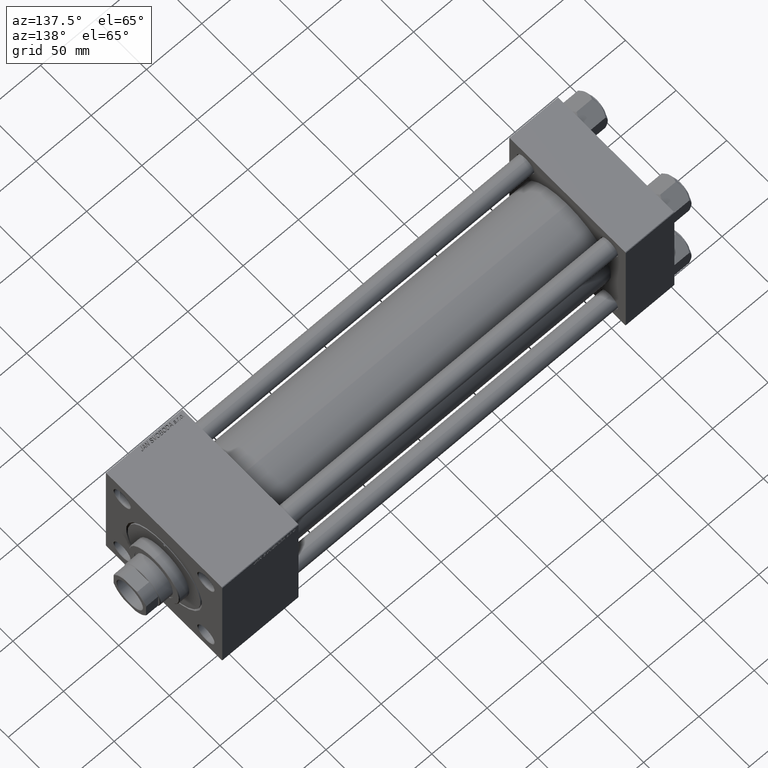
[diagram: clean part render]
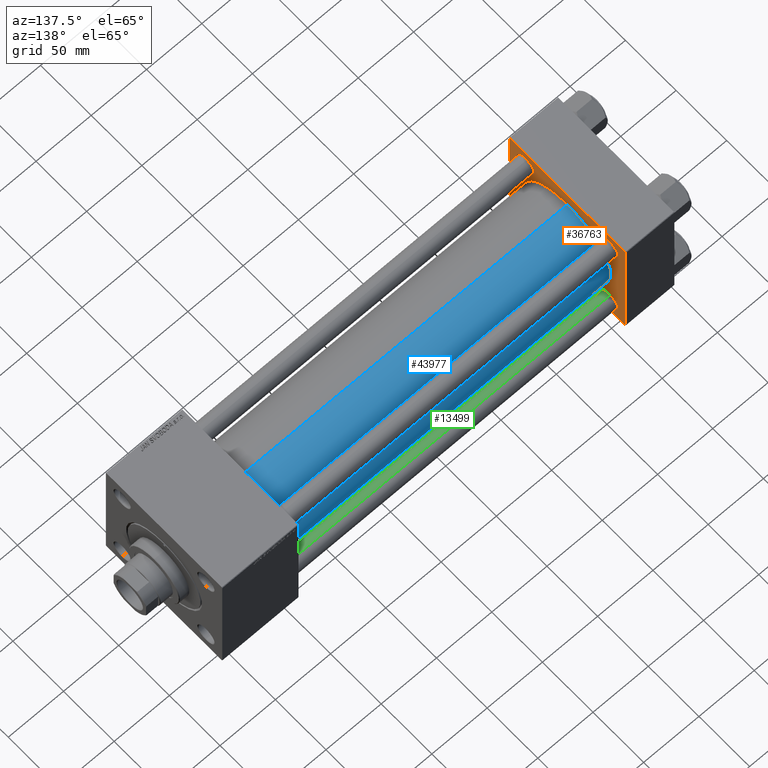
[diagram: same view with three faces highlighted in distinct colors, each labeled with its STEP entity id]
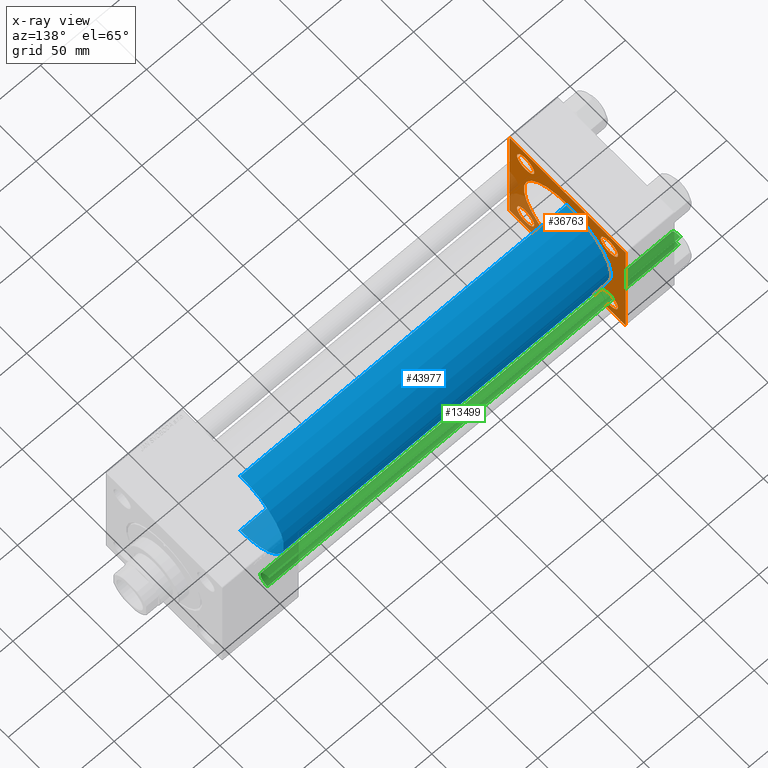
[diagram: x-ray of the same camera — body ghosted, the three highlighted faces saturated]
A machine part, auxiliary view with three faces highlighted in distinct colors.
The next image is the same camera in x-ray (body ghosted, the three faces saturated) — at least one of them is partly hidden behind the body in this view.
Their STEP definitions:

[orange] entity #36763 — the highlighted planar face has unit normal (-1, 0, 0).
#966 = CIRCLE ( 'NONE', #5070, 8.500000000000007105 ) ;
#1155 = CARTESIAN_POINT ( 'NONE',  ( 44.00000000000000000, 41.34999999999999432, -32.84999999999999432 ) ) ;
#1240 = EDGE_LOOP ( 'NONE', ( #13257, #9137 ) ) ;
#1242 = LINE ( 'NONE', #12802, #2105 ) ;
#1422 = VERTEX_POINT ( 'NONE', #9269 ) ;
#1452 = LINE ( 'NONE', #36908, #26907 ) ;
#1697 = EDGE_CURVE ( 'NONE', #24540, #17954, #1242, .T. ) ;
#1730 = AXIS2_PLACEMENT_3D ( 'NONE', #36448, #21004, #21531 ) ;
#2105 = VECTOR ( 'NONE', #41077, 1000.000000000000000 ) ;
#2213 = ORIENTED_EDGE ( 'NONE', *, *, #4105, .T. ) ;
#2738 = DIRECTION ( 'NONE',  ( -1.000000000000000000, 0.000000000000000000, -0.000000000000000000 ) ) ;
#3123 = CARTESIAN_POINT ( 'NONE',  ( 43.99999999999998579, -2.602085213965210642E-15, 0.000000000000000000 ) ) ;
#3635 = DIRECTION ( 'NONE',  ( -0.000000000000000000, 0.000000000000000000, 1.000000000000000000 ) ) ;
#3669 = VERTEX_POINT ( 'NONE', #12368 ) ;
#3780 = ORIENTED_EDGE ( 'NONE', *, *, #1697, .F. ) ;
#4017 = ORIENTED_EDGE ( 'NONE', *, *, #18223, .F. ) ;
#4039 = CARTESIAN_POINT ( 'NONE',  ( 44.00000000000000000, 57.49999999999999289, 57.00000000000003553 ) ) ;
#4105 = EDGE_CURVE ( 'NONE', #1422, #46989, #5040, .T. ) ;
#4316 = VECTOR ( 'NONE', #40401, 1000.000000000000114 ) ;
#4728 = CIRCLE ( 'NONE', #23583, 8.500000000000007105 ) ;
#5040 = LINE ( 'NONE', #16856, #16111 ) ;
#5070 = AXIS2_PLACEMENT_3D ( 'NONE', #35188, #15646, #31330 ) ;
#5292 = DIRECTION ( 'NONE',  ( -0.000000000000000000, -0.7071067811865376918, -0.7071067811865573427 ) ) ;
#5811 = DIRECTION ( 'NONE',  ( 0.000000000000000000, 0.000000000000000000, -1.000000000000000000 ) ) ;
#6276 = LINE ( 'NONE', #26552, #27200 ) ;
#6884 = VERTEX_POINT ( 'NONE', #29111 ) ;
#6977 = EDGE_LOOP ( 'NONE', ( #9025, #15116 ) ) ;
#7239 = FACE_OUTER_BOUND ( 'NONE', #10172, .T. ) ;
#7582 = CARTESIAN_POINT ( 'NONE',  ( 44.00000000000000000, -41.34999999999998721, -32.85000000000000142 ) ) ;
#8163 = CARTESIAN_POINT ( 'NONE',  ( 44.00000000000000000, -41.34999999999998721, 49.85000000000002274 ) ) ;
#8466 = CARTESIAN_POINT ( 'NONE',  ( 44.00000000000000000, 41.34999999999999432, 49.85000000000001563 ) ) ;
#8581 = ORIENTED_EDGE ( 'NONE', *, *, #36710, .F. ) ;
#8764 = AXIS2_PLACEMENT_3D ( 'NONE', #46984, #40532, #32062 ) ;
#8848 = EDGE_CURVE ( 'NONE', #19285, #41583, #28568, .T. ) ;
#8930 = VECTOR ( 'NONE', #24768, 1000.000000000000114 ) ;
#9025 = ORIENTED_EDGE ( 'NONE', *, *, #23252, .T. ) ;
#9118 = CARTESIAN_POINT ( 'NONE',  ( 44.00000000000000000, 57.00000000000000711, 57.50000000000000711 ) ) ;
#9137 = ORIENTED_EDGE ( 'NONE', *, *, #46022, .T. ) ;
#9269 = CARTESIAN_POINT ( 'NONE',  ( 44.00000000000000000, -57.50000000000000711, 57.00000000000000711 ) ) ;
#9486 = CARTESIAN_POINT ( 'NONE',  ( 43.99999999999998579, 2.663896022368408223E-15, -43.00000000000000000 ) ) ;
#10172 = EDGE_LOOP ( 'NONE', ( #26692, #42804, #3780, #13678, #44289, #13718, #2213, #14568 ) ) ;
#10428 = DIRECTION ( 'NONE',  ( -1.000000000000000000, 0.000000000000000000, -0.000000000000000000 ) ) ;
#10536 = CARTESIAN_POINT ( 'NONE',  ( 44.00000000000000000, -57.50000000000000711, -57.00000000000000711 ) ) ;
#10829 = EDGE_CURVE ( 'NONE', #19212, #37058, #4728, .T. ) ;
#10961 = DIRECTION ( 'NONE',  ( -1.000000000000000000, 0.000000000000000000, -0.000000000000000000 ) ) ;
#11374 = AXIS2_PLACEMENT_3D ( 'NONE', #15444, #22388, #3635 ) ;
#11657 = CIRCLE ( 'NONE', #40351, 8.500000000000007105 ) ;
#12368 = CARTESIAN_POINT ( 'NONE',  ( 44.00000000000000000, 57.00000000000002132, -57.49999999999999289 ) ) ;
#12802 = CARTESIAN_POINT ( 'NONE',  ( 44.00000000000000000, 57.49999999999999289, 57.50000000000000711 ) ) ;
#12963 = CARTESIAN_POINT ( 'NONE',  ( 44.00000000000000000, 41.34999999999999432, -49.85000000000001563 ) ) ;
#12968 = LINE ( 'NONE', #9118, #8930 ) ;
#13242 = CIRCLE ( 'NONE', #41164, 8.500000000000007105 ) ;
#13257 = ORIENTED_EDGE ( 'NONE', *, *, #48565, .T. ) ;
#13327 = CIRCLE ( 'NONE', #42908, 8.500000000000007105 ) ;
#13678 = ORIENTED_EDGE ( 'NONE', *, *, #37128, .T. ) ;
#13718 = ORIENTED_EDGE ( 'NONE', *, *, #24798, .T. ) ;
#14565 = AXIS2_PLACEMENT_3D ( 'NONE', #22739, #10428, #33302 ) ;
#14568 = ORIENTED_EDGE ( 'NONE', *, *, #45724, .T. ) ;
#14754 = CARTESIAN_POINT ( 'NONE',  ( 44.00000000000000000, -41.34999999999998721, 32.85000000000000142 ) ) ;
#15116 = ORIENTED_EDGE ( 'NONE', *, *, #48025, .T. ) ;
#15205 = EDGE_CURVE ( 'NONE', #3669, #17954, #34430, .T. ) ;
#15444 = CARTESIAN_POINT ( 'NONE',  ( 44.00000000000000000, 0.000000000000000000, 0.000000000000000000 ) ) ;
#15646 = DIRECTION ( 'NONE',  ( -1.000000000000000000, 0.000000000000000000, -0.000000000000000000 ) ) ;
#16111 = VECTOR ( 'NONE', #5811, 1000.000000000000000 ) ;
#16177 = CARTESIAN_POINT ( 'NONE',  ( 44.00000000000000000, -57.00000000000003553, 57.49999999999999289 ) ) ;
#16212 = CARTESIAN_POINT ( 'NONE',  ( 44.00000000000000000, 57.49999999999999289, -57.00000000000000711 ) ) ;
#16856 = CARTESIAN_POINT ( 'NONE',  ( 44.00000000000000000, -57.50000000000000711, 57.49999999999999289 ) ) ;
#16931 = VERTEX_POINT ( 'NONE', #47545 ) ;
#17101 = AXIS2_PLACEMENT_3D ( 'NONE', #3123, #30103, #46537 ) ;
#17282 = DIRECTION ( 'NONE',  ( 0.000000000000000000, 0.000000000000000000, 1.000000000000000000 ) ) ;
#17592 = VERTEX_POINT ( 'NONE', #7582 ) ;
#17954 = VERTEX_POINT ( 'NONE', #16212 ) ;
#18223 = EDGE_CURVE ( 'NONE', #16931, #26468, #32057, .T. ) ;
#19212 = VERTEX_POINT ( 'NONE', #12963 ) ;
#19285 = VERTEX_POINT ( 'NONE', #14754 ) ;
#19483 = EDGE_CURVE ( 'NONE', #41583, #19285, #13242, .T. ) ;
#19869 = VERTEX_POINT ( 'NONE', #24269 ) ;
#20447 = ORIENTED_EDGE ( 'NONE', *, *, #8848, .T. ) ;
#21004 = DIRECTION ( 'NONE',  ( 1.000000000000000000, -0.000000000000000000, 0.000000000000000000 ) ) ;
#21220 = ORIENTED_EDGE ( 'NONE', *, *, #10829, .T. ) ;
#21531 = DIRECTION ( 'NONE',  ( 0.000000000000000000, 0.000000000000000000, 1.000000000000000000 ) ) ;
#21629 = LINE ( 'NONE', #37314, #4316 ) ;
#22081 = CARTESIAN_POINT ( 'NONE',  ( 44.00000000000000000, 57.49999999999999289, -57.00000000000000711 ) ) ;
#22129 = FACE_BOUND ( 'NONE', #1240, .T. ) ;
#22388 = DIRECTION ( 'NONE',  ( -1.000000000000000000, 0.000000000000000000, -0.000000000000000000 ) ) ;
#22739 = CARTESIAN_POINT ( 'NONE',  ( 44.00000000000000000, 41.34999999999999432, -41.35000000000000142 ) ) ;
#23144 = FACE_BOUND ( 'NONE', #6977, .T. ) ;
#23252 = EDGE_CURVE ( 'NONE', #6884, #40043, #25511, .T. ) ;
#23257 = CARTESIAN_POINT ( 'NONE',  ( 44.00000000000000000, 41.34999999999999432, -41.35000000000000142 ) ) ;
#23583 = AXIS2_PLACEMENT_3D ( 'NONE', #23257, #10961, #38948 ) ;
#23671 = CIRCLE ( 'NONE', #17101, 43.00000000000000000 ) ;
#24117 = VERTEX_POINT ( 'NONE', #16177 ) ;
#24269 = CARTESIAN_POINT ( 'NONE',  ( 44.00000000000000000, 57.00000000000000711, 57.50000000000000711 ) ) ;
#24540 = VERTEX_POINT ( 'NONE', #4039 ) ;
#24768 = DIRECTION ( 'NONE',  ( 0.000000000000000000, -0.7071067811865573427, 0.7071067811865376918 ) ) ;
#24798 = EDGE_CURVE ( 'NONE', #24117, #1422, #33043, .T. ) ;
#24976 = DIRECTION ( 'NONE',  ( -1.000000000000000000, 0.000000000000000000, -0.000000000000000000 ) ) ;
#25511 = CIRCLE ( 'NONE', #33755, 8.500000000000007105 ) ;
#25980 = DIRECTION ( 'NONE',  ( 0.000000000000000000, 0.000000000000000000, 1.000000000000000000 ) ) ;
#26180 = CARTESIAN_POINT ( 'NONE',  ( 44.00000000000000000, -41.34999999999998721, -49.85000000000002274 ) ) ;
#26468 = VERTEX_POINT ( 'NONE', #9486 ) ;
#26504 = CARTESIAN_POINT ( 'NONE',  ( 44.00000000000000000, -41.34999999999998721, -41.35000000000000853 ) ) ;
#26552 = CARTESIAN_POINT ( 'NONE',  ( 44.00000000000000000, 57.49999999999999289, -57.49999999999999289 ) ) ;
#26692 = ORIENTED_EDGE ( 'NONE', *, *, #43090, .F. ) ;
#26907 = VECTOR ( 'NONE', #48209, 1000.000000000000000 ) ;
#27200 = VECTOR ( 'NONE', #49448, 1000.000000000000000 ) ;
#28538 = VERTEX_POINT ( 'NONE', #26180 ) ;
#28568 = CIRCLE ( 'NONE', #8764, 8.500000000000007105 ) ;
#29111 = CARTESIAN_POINT ( 'NONE',  ( 44.00000000000000000, 41.34999999999999432, 32.84999999999999432 ) ) ;
#29263 = VERTEX_POINT ( 'NONE', #44708 ) ;
#30103 = DIRECTION ( 'NONE',  ( 1.000000000000000000, -0.000000000000000000, 0.000000000000000000 ) ) ;
#30146 = CIRCLE ( 'NONE', #14565, 8.500000000000007105 ) ;
#30256 = EDGE_CURVE ( 'NONE', #37058, #19212, #30146, .T. ) ;
#30953 = EDGE_CURVE ( 'NONE', #19869, #24117, #1452, .T. ) ;
#31330 = DIRECTION ( 'NONE',  ( 0.000000000000000000, 0.000000000000000000, 1.000000000000000000 ) ) ;
#32057 = CIRCLE ( 'NONE', #1730, 43.00000000000000000 ) ;
#32062 = DIRECTION ( 'NONE',  ( 0.000000000000000000, 0.000000000000000000, 1.000000000000000000 ) ) ;
#32798 = VECTOR ( 'NONE', #41368, 1000.000000000000114 ) ;
#33043 = LINE ( 'NONE', #40494, #46157 ) ;
#33302 = DIRECTION ( 'NONE',  ( 0.000000000000000000, 0.000000000000000000, 1.000000000000000000 ) ) ;
#33755 = AXIS2_PLACEMENT_3D ( 'NONE', #49503, #2738, #49242 ) ;
#34226 = FACE_BOUND ( 'NONE', #45662, .T. ) ;
#34230 = DIRECTION ( 'NONE',  ( -1.000000000000000000, 0.000000000000000000, -0.000000000000000000 ) ) ;
#34430 = LINE ( 'NONE', #22081, #32798 ) ;
#34494 = DIRECTION ( 'NONE',  ( 0.000000000000000000, 0.000000000000000000, 1.000000000000000000 ) ) ;
#35188 = CARTESIAN_POINT ( 'NONE',  ( 44.00000000000000000, 41.34999999999999432, 41.35000000000000142 ) ) ;
#36448 = CARTESIAN_POINT ( 'NONE',  ( 43.99999999999998579, -2.602085213965210642E-15, 0.000000000000000000 ) ) ;
#36710 = EDGE_CURVE ( 'NONE', #26468, #16931, #23671, .T. ) ;
#36763 = ADVANCED_FACE ( 'NONE', ( #22129, #42431, #34226, #23144, #38842, #7239 ), #45785, .F. ) ;
#36822 = CARTESIAN_POINT ( 'NONE',  ( 44.00000000000000000, -41.34999999999998721, -41.35000000000000853 ) ) ;
#36908 = CARTESIAN_POINT ( 'NONE',  ( 44.00000000000000000, 57.49999999999999289, 57.50000000000000711 ) ) ;
#37058 = VERTEX_POINT ( 'NONE', #1155 ) ;
#37128 = EDGE_CURVE ( 'NONE', #24540, #19869, #12968, .T. ) ;
#37314 = CARTESIAN_POINT ( 'NONE',  ( 44.00000000000000000, -57.00000000000000711, -57.50000000000000711 ) ) ;
#38842 = FACE_BOUND ( 'NONE', #50482, .T. ) ;
#38948 = DIRECTION ( 'NONE',  ( 0.000000000000000000, 0.000000000000000000, 1.000000000000000000 ) ) ;
#40043 = VERTEX_POINT ( 'NONE', #8466 ) ;
#40351 = AXIS2_PLACEMENT_3D ( 'NONE', #36822, #24976, #17282 ) ;
#40401 = DIRECTION ( 'NONE',  ( 0.000000000000000000, 0.7071067811865474617, -0.7071067811865474617 ) ) ;
#40494 = CARTESIAN_POINT ( 'NONE',  ( 44.00000000000000000, -57.50000000000000711, 57.00000000000000711 ) ) ;
#40532 = DIRECTION ( 'NONE',  ( -1.000000000000000000, 0.000000000000000000, -0.000000000000000000 ) ) ;
#41077 = DIRECTION ( 'NONE',  ( 0.000000000000000000, 0.000000000000000000, -1.000000000000000000 ) ) ;
#41164 = AXIS2_PLACEMENT_3D ( 'NONE', #45279, #34230, #25980 ) ;
#41368 = DIRECTION ( 'NONE',  ( -0.000000000000000000, 0.7071067811865376918, 0.7071067811865573427 ) ) ;
#41583 = VERTEX_POINT ( 'NONE', #8163 ) ;
#42198 = DIRECTION ( 'NONE',  ( -1.000000000000000000, 0.000000000000000000, -0.000000000000000000 ) ) ;
#42431 = FACE_BOUND ( 'NONE', #42847, .T. ) ;
#42804 = ORIENTED_EDGE ( 'NONE', *, *, #15205, .T. ) ;
#42847 = EDGE_LOOP ( 'NONE', ( #21220, #47556 ) ) ;
#42908 = AXIS2_PLACEMENT_3D ( 'NONE', #26504, #42198, #34494 ) ;
#43090 = EDGE_CURVE ( 'NONE', #3669, #29263, #6276, .T. ) ;
#44289 = ORIENTED_EDGE ( 'NONE', *, *, #30953, .T. ) ;
#44708 = CARTESIAN_POINT ( 'NONE',  ( 44.00000000000000000, -57.00000000000000711, -57.50000000000000711 ) ) ;
#45279 = CARTESIAN_POINT ( 'NONE',  ( 44.00000000000000000, -41.34999999999998721, 41.35000000000000853 ) ) ;
#45662 = EDGE_LOOP ( 'NONE', ( #20447, #48998 ) ) ;
#45724 = EDGE_CURVE ( 'NONE', #46989, #29263, #21629, .T. ) ;
#45785 = PLANE ( 'NONE',  #11374 ) ;
#46022 = EDGE_CURVE ( 'NONE', #17592, #28538, #13327, .T. ) ;
#46157 = VECTOR ( 'NONE', #5292, 1000.000000000000114 ) ;
#46537 = DIRECTION ( 'NONE',  ( 0.000000000000000000, 0.000000000000000000, 1.000000000000000000 ) ) ;
#46984 = CARTESIAN_POINT ( 'NONE',  ( 44.00000000000000000, -41.34999999999998721, 41.35000000000000853 ) ) ;
#46989 = VERTEX_POINT ( 'NONE', #10536 ) ;
#47545 = CARTESIAN_POINT ( 'NONE',  ( 43.99999999999998579, -2.602085213965210642E-15, 43.00000000000000000 ) ) ;
#47556 = ORIENTED_EDGE ( 'NONE', *, *, #30256, .T. ) ;
#48025 = EDGE_CURVE ( 'NONE', #40043, #6884, #966, .T. ) ;
#48209 = DIRECTION ( 'NONE',  ( 0.000000000000000000, -1.000000000000000000, -1.206764157201257045E-16 ) ) ;
#48565 = EDGE_CURVE ( 'NONE', #28538, #17592, #11657, .T. ) ;
#48998 = ORIENTED_EDGE ( 'NONE', *, *, #19483, .T. ) ;
#49242 = DIRECTION ( 'NONE',  ( 0.000000000000000000, 0.000000000000000000, 1.000000000000000000 ) ) ;
#49448 = DIRECTION ( 'NONE',  ( 0.000000000000000000, -1.000000000000000000, -1.206764157201257045E-16 ) ) ;
#49503 = CARTESIAN_POINT ( 'NONE',  ( 44.00000000000000000, 41.34999999999999432, 41.35000000000000142 ) ) ;
#50482 = EDGE_LOOP ( 'NONE', ( #4017, #8581 ) ) ;

[blue] entity #43977 — the highlighted cylindrical surface (partial cylindrical patch) has radius 43 mm, axis along (-1, -0, -0).
#348 = EDGE_LOOP ( 'NONE', ( #33943, #39710, #19335, #34300 ) ) ;
#3123 = CARTESIAN_POINT ( 'NONE',  ( 43.99999999999998579, -2.602085213965210642E-15, 0.000000000000000000 ) ) ;
#3810 = DIRECTION ( 'NONE',  ( -1.000000000000000000, -0.000000000000000000, -0.000000000000000000 ) ) ;
#5020 = DIRECTION ( 'NONE',  ( -1.000000000000000000, -0.000000000000000000, -0.000000000000000000 ) ) ;
#5833 = CARTESIAN_POINT ( 'NONE',  ( 339.9999999999999432, 2.663896022368408223E-15, -43.00000000000000000 ) ) ;
#6532 = DIRECTION ( 'NONE',  ( 0.000000000000000000, 0.000000000000000000, -1.000000000000000000 ) ) ;
#9486 = CARTESIAN_POINT ( 'NONE',  ( 43.99999999999998579, 2.663896022368408223E-15, -43.00000000000000000 ) ) ;
#9927 = EDGE_CURVE ( 'NONE', #31900, #16931, #43144, .T. ) ;
#10781 = DIRECTION ( 'NONE',  ( 0.000000000000000000, 0.000000000000000000, 1.000000000000000000 ) ) ;
#16931 = VERTEX_POINT ( 'NONE', #47545 ) ;
#17101 = AXIS2_PLACEMENT_3D ( 'NONE', #3123, #30103, #46537 ) ;
#18221 = AXIS2_PLACEMENT_3D ( 'NONE', #22824, #3810, #10781 ) ;
#19335 = ORIENTED_EDGE ( 'NONE', *, *, #36710, .T. ) ;
#19502 = CARTESIAN_POINT ( 'NONE',  ( 339.9999999999999432, -2.602085213965210642E-15, 43.00000000000000000 ) ) ;
#21492 = DIRECTION ( 'NONE',  ( -1.000000000000000000, -0.000000000000000000, -0.000000000000000000 ) ) ;
#22567 = CYLINDRICAL_SURFACE ( 'NONE', #18221, 43.00000000000000000 ) ;
#22824 = CARTESIAN_POINT ( 'NONE',  ( 339.9999999999999432, -2.602085213965210642E-15, 0.000000000000000000 ) ) ;
#23540 = VECTOR ( 'NONE', #5020, 1000.000000000000000 ) ;
#23671 = CIRCLE ( 'NONE', #17101, 43.00000000000000000 ) ;
#26036 = DIRECTION ( 'NONE',  ( 1.000000000000000000, 0.000000000000000000, 0.000000000000000000 ) ) ;
#26468 = VERTEX_POINT ( 'NONE', #9486 ) ;
#27441 = EDGE_CURVE ( 'NONE', #31278, #31900, #38296, .T. ) ;
#28616 = CARTESIAN_POINT ( 'NONE',  ( 339.9999999999999432, 2.663896022368408223E-15, -43.00000000000000000 ) ) ;
#30103 = DIRECTION ( 'NONE',  ( 1.000000000000000000, -0.000000000000000000, 0.000000000000000000 ) ) ;
#31278 = VERTEX_POINT ( 'NONE', #28616 ) ;
#31318 = VECTOR ( 'NONE', #21492, 1000.000000000000000 ) ;
#31900 = VERTEX_POINT ( 'NONE', #33913 ) ;
#33913 = CARTESIAN_POINT ( 'NONE',  ( 339.9999999999999432, -2.602085213965210642E-15, 43.00000000000000000 ) ) ;
#33943 = ORIENTED_EDGE ( 'NONE', *, *, #27441, .F. ) ;
#34300 = ORIENTED_EDGE ( 'NONE', *, *, #9927, .F. ) ;
#34539 = CARTESIAN_POINT ( 'NONE',  ( 339.9999999999999432, -2.602085213965210642E-15, 0.000000000000000000 ) ) ;
#36710 = EDGE_CURVE ( 'NONE', #26468, #16931, #23671, .T. ) ;
#38257 = FACE_OUTER_BOUND ( 'NONE', #348, .T. ) ;
#38296 = CIRCLE ( 'NONE', #48096, 43.00000000000000000 ) ;
#39710 = ORIENTED_EDGE ( 'NONE', *, *, #44255, .T. ) ;
#43144 = LINE ( 'NONE', #19502, #23540 ) ;
#43977 = ADVANCED_FACE ( 'NONE', ( #38257 ), #22567, .T. ) ;
#44255 = EDGE_CURVE ( 'NONE', #31278, #26468, #44881, .T. ) ;
#44881 = LINE ( 'NONE', #5833, #31318 ) ;
#46537 = DIRECTION ( 'NONE',  ( 0.000000000000000000, 0.000000000000000000, 1.000000000000000000 ) ) ;
#47545 = CARTESIAN_POINT ( 'NONE',  ( 43.99999999999998579, -2.602085213965210642E-15, 43.00000000000000000 ) ) ;
#48096 = AXIS2_PLACEMENT_3D ( 'NONE', #34539, #26036, #6532 ) ;

[green] entity #13499 — the highlighted cylindrical surface (edge-blend (fillet) strip) has radius 8 mm, axis along (1, -0, 0).
#3 = EDGE_CURVE ( 'NONE', #5923, #32270, #13744, .T. ) ;
#1262 = EDGE_CURVE ( 'NONE', #32270, #23247, #36538, .T. ) ;
#2782 = ORIENTED_EDGE ( 'NONE', *, *, #3, .T. ) ;
#4747 = AXIS2_PLACEMENT_3D ( 'NONE', #40976, #48421, #36603 ) ;
#4808 = AXIS2_PLACEMENT_3D ( 'NONE', #35840, #23504, #24254 ) ;
#5923 = VERTEX_POINT ( 'NONE', #33220 ) ;
#6063 = CARTESIAN_POINT ( 'NONE',  ( 0.000000000000000000, 0.000000000000000000, 0.5000000000000559552 ) ) ;
#6972 = VECTOR ( 'NONE', #17598, 1000.000000000000000 ) ;
#8235 = EDGE_CURVE ( 'NONE', #34328, #23247, #33080, .T. ) ;
#12453 = CYLINDRICAL_SURFACE ( 'NONE', #4808, 8.000000000000000000 ) ;
#12866 = VECTOR ( 'NONE', #33595, 1000.000000000000000 ) ;
#13499 = ADVANCED_FACE ( 'NONE', ( #43059 ), #12453, .T. ) ;
#13744 = LINE ( 'NONE', #26062, #6972 ) ;
#14476 = ORIENTED_EDGE ( 'NONE', *, *, #8235, .F. ) ;
#17598 = DIRECTION ( 'NONE',  ( -0.000000000000000000, -0.000000000000000000, -1.000000000000000000 ) ) ;
#17631 = CARTESIAN_POINT ( 'NONE',  ( 8.000000000000000000, 9.797174393178825657E-16, 0.5000000000000559552 ) ) ;
#18508 = AXIS2_PLACEMENT_3D ( 'NONE', #6063, #25818, #37653 ) ;
#22696 = CARTESIAN_POINT ( 'NONE',  ( -8.000000000000000000, 0.000000000000000000, 0.5000000000000559552 ) ) ;
#23247 = VERTEX_POINT ( 'NONE', #17631 ) ;
#23504 = DIRECTION ( 'NONE',  ( -0.000000000000000000, -0.000000000000000000, -1.000000000000000000 ) ) ;
#23697 = EDGE_LOOP ( 'NONE', ( #14476, #47568, #2782, #26014 ) ) ;
#24254 = DIRECTION ( 'NONE',  ( -1.000000000000000000, 0.000000000000000000, 0.000000000000000000 ) ) ;
#25345 = CARTESIAN_POINT ( 'NONE',  ( 8.000000000000000000, 9.797174393178825657E-16, 373.0000000000000000 ) ) ;
#25818 = DIRECTION ( 'NONE',  ( -0.000000000000000000, -0.000000000000000000, 1.000000000000000000 ) ) ;
#26014 = ORIENTED_EDGE ( 'NONE', *, *, #1262, .T. ) ;
#26062 = CARTESIAN_POINT ( 'NONE',  ( -8.000000000000000000, 0.000000000000000000, 373.0000000000000000 ) ) ;
#32270 = VERTEX_POINT ( 'NONE', #22696 ) ;
#33080 = LINE ( 'NONE', #25345, #12866 ) ;
#33220 = CARTESIAN_POINT ( 'NONE',  ( -8.000000000000000000, 0.000000000000000000, 372.5000000000000000 ) ) ;
#33484 = CIRCLE ( 'NONE', #4747, 8.000000000000000000 ) ;
#33595 = DIRECTION ( 'NONE',  ( -0.000000000000000000, -0.000000000000000000, -1.000000000000000000 ) ) ;
#34328 = VERTEX_POINT ( 'NONE', #40192 ) ;
#35279 = EDGE_CURVE ( 'NONE', #34328, #5923, #33484, .T. ) ;
#35840 = CARTESIAN_POINT ( 'NONE',  ( 0.000000000000000000, 0.000000000000000000, 373.0000000000000000 ) ) ;
#36538 = CIRCLE ( 'NONE', #18508, 8.000000000000000000 ) ;
#36603 = DIRECTION ( 'NONE',  ( 1.000000000000000000, 0.000000000000000000, 0.000000000000000000 ) ) ;
#37653 = DIRECTION ( 'NONE',  ( 1.000000000000000000, 0.000000000000000000, 0.000000000000000000 ) ) ;
#40192 = CARTESIAN_POINT ( 'NONE',  ( 8.000000000000000000, 9.797174393178825657E-16, 372.5000000000000000 ) ) ;
#40976 = CARTESIAN_POINT ( 'NONE',  ( 0.000000000000000000, 0.000000000000000000, 372.5000000000000000 ) ) ;
#43059 = FACE_OUTER_BOUND ( 'NONE', #23697, .T. ) ;
#47568 = ORIENTED_EDGE ( 'NONE', *, *, #35279, .T. ) ;
#48421 = DIRECTION ( 'NONE',  ( 0.000000000000000000, 0.000000000000000000, -1.000000000000000000 ) ) ;